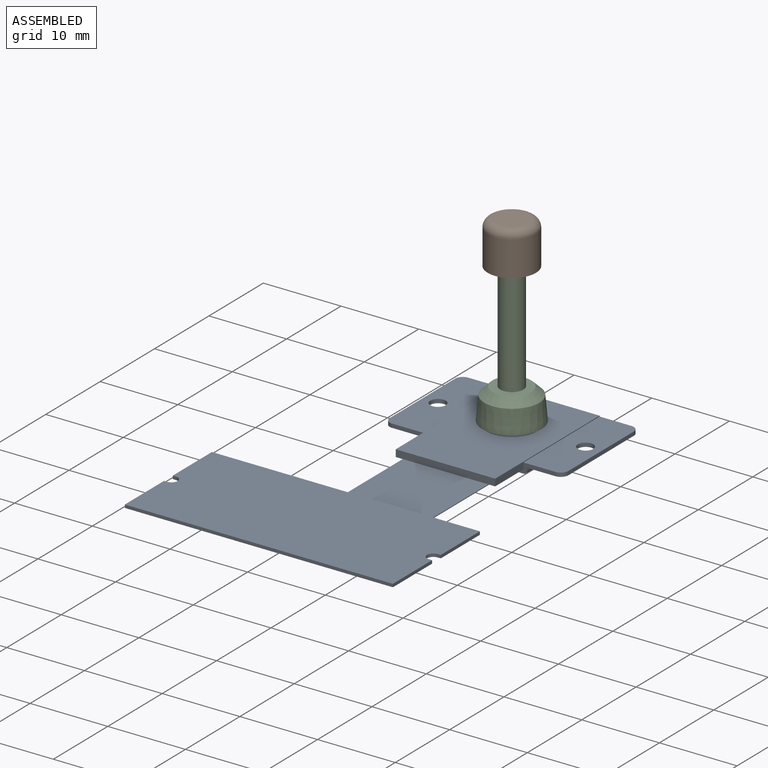
[diagram: assembled view]
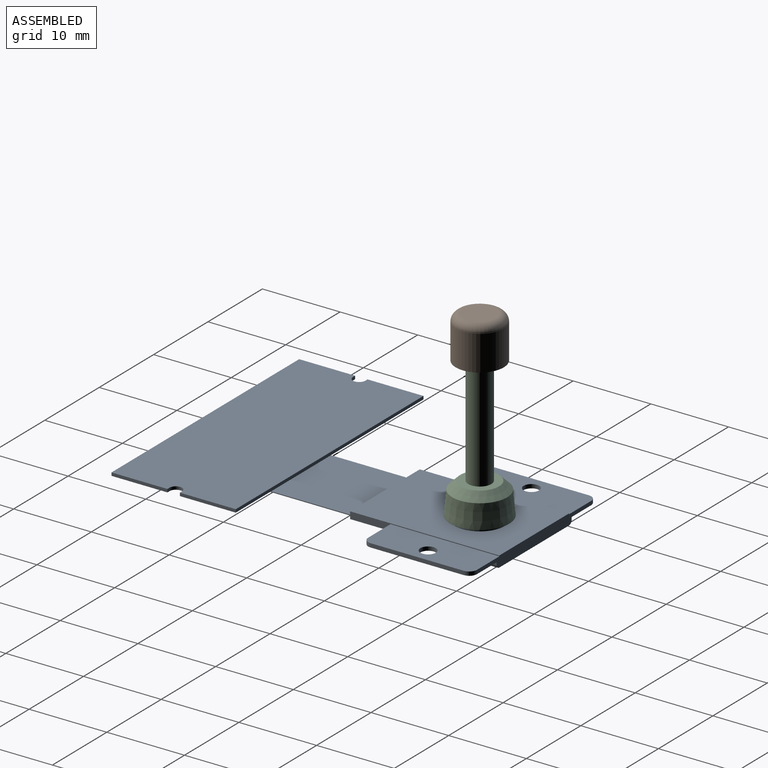
[diagram: assembled view, second angle]
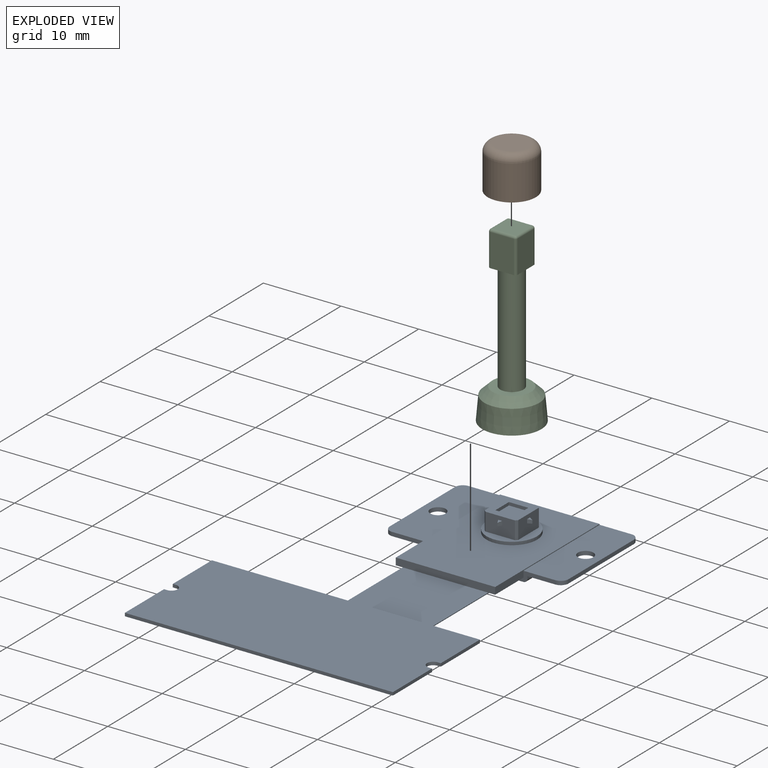
[diagram: exploded view]
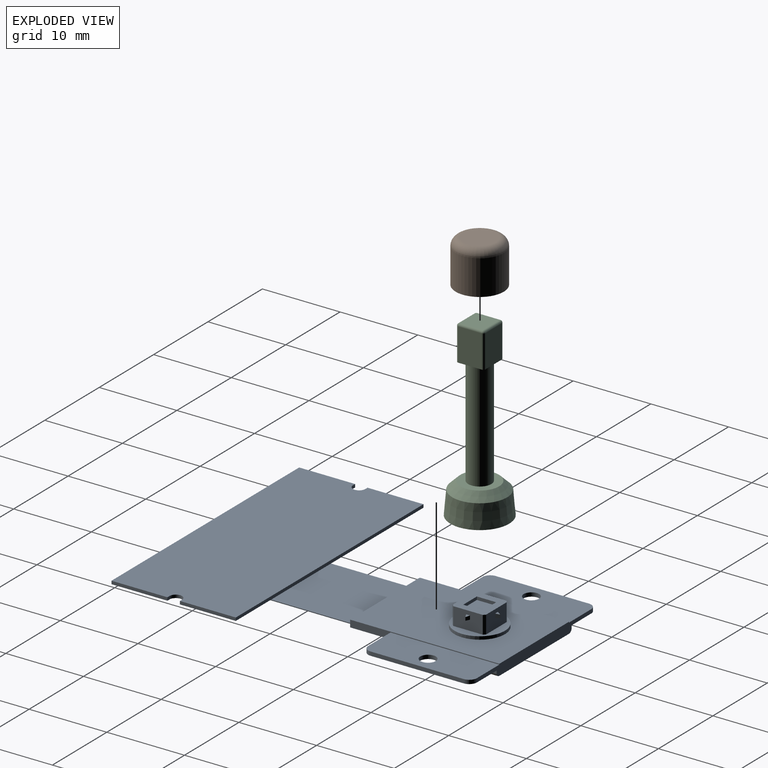
[diagram: exploded view, second angle]
ASSEMBLY  parts=3 mates=2
PART A: 76 faces, bbox 34.5x46x4.1 mm
  f0: plane 5.2x0.9mm, normal (0,0,-1), area 4.7mm2, adj f11,f24,f26,f72
  f1: plane 4.3x4.3mm, normal (0,0,1), area 12.1mm2, adj f2,f3,f30,f31,f32,f33,f34,f35
  f2: plane 3.8x2.3mm, normal (1,0,0), area 8.5mm2, adj f1,f4,f32,f34,f44,f45,f46,f47
  f3: plane 3.8x2.3mm, normal (0,-1,0), area 8.5mm2, adj f1,f4,f34,f35,f40,f41,f42,f43
  f4: plane 6.5x6.5mm, normal (0,0,1), area 14.8mm2, adj f2,f3,f29,f30,f31,f32,f33,f34
  f5: plane 14x12.8mm, normal (0,0,-1), area 179.2mm2, adj f6,f11,f12,f16
  f6: cylinder r=0.5mm len=14mm, axis (0,1,0), area 11mm2, adj f5,f7,f11,f12
  f7: plane 14x0.3mm, normal (1,0,0), area 4.2mm2, adj f6,f8,f11,f12
  f8: plane 14x4.6mm, normal (0,0,-1), area 60.8mm2, adj f7,f9,f11,f12,f13,f14,f15
  f9: plane 12x0.5mm, normal (1,0,0), area 6mm2, adj f8,f10,f14,f15
  f10: plane 14x5.1mm, normal (0,0,1), area 67.8mm2, adj f9,f11,f12,f13,f14,f15,f25
  f11: plane 21x1.3mm, normal (0,-1,0), area 10.1mm2, adj f0,f5,f6,f7,f8,f10,f15,f16
  f12: plane 21x1.4mm, normal (0,1,0), area 22.7mm2, adj f5,f6,f7,f8,f10,f14,f16,f17
  f13: cylinder r=1mm len=2mm, axis (0,0,1), area 3.1mm2, adj f8,f10
  f14: cylinder r=1mm len=1mm, axis (0,0,1), area 0.8mm2, adj f8,f9,f10,f12
  f15: cylinder r=1mm len=1mm, axis (0,0,-1), area 0.8mm2, adj f8,f9,f10,f11
  f16: cylinder r=0.5mm len=14mm, axis (0,1,0), area 11mm2, adj f5,f11,f12,f17
  f17: plane 14x0.3mm, normal (-1,0,0), area 4.2mm2, adj f11,f12,f16,f18
  f18: plane 14x4.6mm, normal (0,0,-1), area 60.8mm2, adj f11,f12,f17,f19,f21,f22,f23
  f19: plane 12x0.5mm, normal (-1,0,0), area 6mm2, adj f18,f20,f22,f23
  f20: plane 14x5.1mm, normal (0,0,1), area 67.8mm2, adj f11,f12,f19,f21,f22,f23,f24
  f21: cylinder r=1mm len=2mm, axis (0,0,1), area 3.1mm2, adj f18,f20
  f22: cylinder r=1mm len=1mm, axis (0,0,1), area 0.8mm2, adj f12,f18,f19,f20
  f23: cylinder r=1mm len=1mm, axis (0,0,-1), area 0.8mm2, adj f11,f18,f19,f20
  f24: plane 19.2x0.9mm, normal (-1,0,0), area 6.1mm2, adj f0,f11,f12,f20,f26,f27
  f25: plane 19.2x0.9mm, normal (1,0,0), area 6.1mm2, adj f10,f11,f12,f26,f27,f28
  f26: plane 12.8x0.9mm, normal (0,-1,0), area 11.5mm2, adj f0,f24,f25,f27,f28,f75
  f27: plane 19.2x12.8mm, normal (0,0,1), area 212.6mm2, adj f12,f24,f25,f26,f29
  f28: plane 5.2x0.9mm, normal (0,0,-1), area 4.7mm2, adj f11,f25,f26,f73
  f29: cylinder r=3.25mm len=6.5mm, axis (0,0,-1), area 8.2mm2, adj f4,f27
  f30: plane 3.8x2.3mm, normal (0,1,0), area 8.5mm2, adj f1,f4,f32,f33,f48,f49,f50,f51
  f31: plane 3.8x2.3mm, normal (-1,0,0), area 8.5mm2, adj f1,f4,f33,f35,f36,f37,f38,f39
  f32: plane 2.3x0.25mm, normal (0.71,0.71,0), area 0.8mm2, adj f1,f2,f4,f30
  f33: plane 2.3x0.25mm, normal (-0.71,0.71,0), area 0.8mm2, adj f1,f4,f30,f31
  f34: plane 2.3x0.25mm, normal (0.71,-0.71,0), area 0.8mm2, adj f1,f2,f3,f4
  f35: plane 2.3x0.25mm, normal (-0.71,-0.71,0), area 0.8mm2, adj f1,f3,f4,f31
  f36: plane 0.5x0.5mm, normal (-0.45,-0.89,0), area 0.3mm2, adj f31,f37,f38,f39
  f37: plane 0.5x0.5mm, normal (-0.45,0.89,0), area 0.3mm2, adj f31,f36,f38,f39
  f38: plane 0.5x0.5mm, normal (0,0,-1), area 0.1mm2, adj f31,f36,f37
  f39: plane 0.5x0.5mm, normal (-0.17,0,0.98), area 0.1mm2, adj f31,f36,f37
  f40: plane 0.5x0.5mm, normal (0.89,-0.45,0), area 0.3mm2, adj f3,f41,f42,f43
  f41: plane 0.5x0.5mm, normal (-0.89,-0.45,0), area 0.3mm2, adj f3,f40,f42,f43
  f42: plane 0.5x0.5mm, normal (0,0,-1), area 0.1mm2, adj f3,f40,f41
  f43: plane 0.5x0.5mm, normal (0,-0.17,0.98), area 0.1mm2, adj f3,f40,f41
  f44: plane 0.5x0.5mm, normal (0.45,0.89,0), area 0.3mm2, adj f2,f45,f46,f47
  f45: plane 0.5x0.5mm, normal (0.45,-0.89,0), area 0.3mm2, adj f2,f44,f46,f47
  f46: plane 0.5x0.5mm, normal (0,0,-1), area 0.1mm2, adj f2,f44,f45
  f47: plane 0.5x0.5mm, normal (0.17,0,0.98), area 0.1mm2, adj f2,f44,f45
  f48: plane 0.5x0.5mm, normal (-0.89,0.45,0), area 0.3mm2, adj f30,f49,f50,f51
  f49: plane 0.5x0.5mm, normal (0.89,0.45,0), area 0.3mm2, adj f30,f48,f50,f51
  f50: plane 0.5x0.5mm, normal (0,0,-1), area 0.1mm2, adj f30,f48,f49
  f51: plane 0.5x0.5mm, normal (0,0.17,0.98), area 0.1mm2, adj f30,f48,f49
  f52: plane 2.5x0.4mm, normal (0,1,0), area 1mm2, adj f1,f53,f55,f56
  f53: plane 2.5x0.4mm, normal (-1,0,0), area 1mm2, adj f1,f52,f54,f56
  f54: plane 2.5x0.4mm, normal (0,-1,0), area 1mm2, adj f1,f53,f55,f56
  f55: plane 2.5x0.4mm, normal (1,0,0), area 1mm2, adj f1,f52,f54,f56
  f56: plane 2.5x2.5mm, normal (0,0,1), area 6.2mm2, adj f52,f53,f54,f55
  f57: plane 7.2x0.4mm, normal (1,0,0), area 2.9mm2, adj f59,f60,f64,f70
  f58: plane 7.2x0.4mm, normal (-1,0,0), area 2.9mm2, adj f59,f60,f64,f65
  f59: plane 34.5x16mm, normal (0,0,1), area 548.7mm2, adj f57,f58,f60,f61,f62,f63,f65,f66
  f60: plane 34.5x0.4mm, normal (0,-1,0), area 13.8mm2, adj f57,f58,f59,f64
  f61: plane 7.2x0.4mm, normal (1,0,0), area 2.9mm2, adj f59,f62,f64,f68
  f62: plane 34.5x0.4mm, normal (0,1,0), area 13.8mm2, adj f59,f61,f63,f64,f75
  f63: plane 7.2x0.4mm, normal (-1,0,0), area 2.9mm2, adj f59,f62,f64,f67
  f64: plane 34.5x16mm, normal (0,0,-1), area 500.8mm2, adj f57,f58,f60,f61,f62,f63,f65,f66
  f65: plane 0.4x0.4mm, normal (0,1,0), area 0.2mm2, adj f58,f59,f64,f66
  f66: cylinder r=0.8mm len=1.6mm, axis (0,0,1), area 1mm2, adj f59,f64,f65,f67
  f67: plane 0.4x0.4mm, normal (0,-1,0), area 0.2mm2, adj f59,f63,f64,f66
  f68: plane 0.4x0.4mm, normal (0,-1,0), area 0.2mm2, adj f59,f61,f64,f69
  f69: cylinder r=0.8mm len=1.6mm, axis (0,0,1), area 1mm2, adj f59,f64,f68,f70
  f70: plane 0.4x0.4mm, normal (0,1,0), area 0.2mm2, adj f57,f59,f64,f69
  f71: plane 11x0.1mm, normal (0,-1,0), area 1.1mm2, adj f64,f72,f73,f74
  f72: plane 20.36x0.1mm, normal (-1,0,0), area 2mm2, adj f0,f11,f64,f71,f74,f75
  f73: plane 20.36x0.1mm, normal (1,0,0), area 2mm2, adj f11,f28,f64,f71,f74,f75
  f74: plane 20.36x11mm, normal (0,0,-1), area 223.9mm2, adj f11,f71,f72,f73
  f75: plane 11x10.8mm, normal (0,0,1), area 118.8mm2, adj f26,f62,f72,f73
PART B: 9 faces, bbox 6.7x6.7x5.5 mm
  f0: plane 6.2x6.2mm, normal (0,0,-1), area 17.6mm2, adj f1,f5,f6,f7,f8
  f1: cylinder r=3.1mm len=6.2mm, axis (0,0,-1), area 87.7mm2, adj f0,f2
  f2: torus R=2.1mm, axis (0,0,-1), area 27mm2, adj f1,f3
  f3: plane 4.2x4.2mm, normal (0,0,1), area 13.9mm2, adj f2
  f4: plane 3.55x3.55mm, normal (0,0,-1), area 12.6mm2, adj f5,f6,f7,f8
  f5: plane 4.5x3.55mm, normal (-1,0,0), area 16mm2, adj f0,f4,f6,f7
  f6: plane 4.5x3.55mm, normal (0,-1,0), area 16mm2, adj f0,f4,f5,f8
  f7: plane 4.5x3.55mm, normal (0,1,0), area 16mm2, adj f0,f4,f5,f8
  f8: plane 4.5x3.55mm, normal (1,0,0), area 16mm2, adj f0,f4,f6,f7
PART C: 28 faces, bbox 7.6x7.6x22.5 mm
  f0: cylinder r=1.5mm len=14mm, axis (0,0,-1), area 131.9mm2, adj f4,f14
  f1: plane 7.6x7.6mm, normal (0,0,-1), area 26.9mm2, adj f2,f5,f6,f7,f8
  f2: cone r=3.54mm half-angle=5deg, axis (0,0,-1), area 69.4mm2, adj f1,f3
  f3: cone r=2.5mm half-angle=46.1deg, axis (0,0,-1), area 27.3mm2, adj f2,f4
  f4: plane 5x5mm, normal (0,0,1), area 12.6mm2, adj f0,f3
  f5: plane 4.3x2.4mm, normal (0,1,0), area 10.3mm2, adj f1,f6,f8,f9
  f6: plane 4.3x2.4mm, normal (-1,0,0), area 10.3mm2, adj f1,f5,f7,f9
  f7: plane 4.3x2.4mm, normal (0,-1,0), area 10.3mm2, adj f1,f6,f8,f9
  f8: plane 4.3x2.4mm, normal (1,0,0), area 10.3mm2, adj f1,f5,f7,f9
  f9: plane 4.3x4.3mm, normal (0,0,-1), area 18.5mm2, adj f5,f6,f7,f8
  f10: plane 4.2x3mm, normal (1,0,0), area 12.6mm2, adj f14,f18,f24,f27
  f11: plane 4.2x3mm, normal (0,1,0), area 12.6mm2, adj f14,f21,f25,f27
  f12: plane 4.2x3mm, normal (-1,0,0), area 12.6mm2, adj f14,f16,f20,f21
  f13: plane 4.2x3mm, normal (0,-1,0), area 12.6mm2, adj f14,f16,f18,f19
  f14: plane 3.6x3.6mm, normal (0,0,-1), area 5.8mm2, adj f0,f10,f11,f12,f13,f16,f18,f21
  f15: plane 3x3mm, normal (0,0,1), area 9mm2, adj f19,f20,f24,f25
  f16: cylinder r=0.3mm len=4.2mm, axis (0,0,1), area 2mm2, adj f12,f13,f14,f17
  f17: sphere r=0.3mm, area 0.1mm2, adj f16,f19,f20
  f18: cylinder r=0.3mm len=4.2mm, axis (0,0,-1), area 2mm2, adj f10,f13,f14,f22
  f19: cylinder r=0.3mm len=3mm, axis (1,0,0), area 1.4mm2, adj f13,f15,f17,f22
  f20: cylinder r=0.3mm len=3mm, axis (0,-1,0), area 1.4mm2, adj f12,f15,f17,f23
  f21: cylinder r=0.3mm len=4.2mm, axis (0,0,-1), area 2mm2, adj f11,f12,f14,f23
  f22: sphere r=0.3mm, area 0.1mm2, adj f18,f19,f24
  f23: sphere r=0.3mm, area 0.1mm2, adj f20,f21,f25
  f24: cylinder r=0.3mm len=3mm, axis (0,1,0), area 1.4mm2, adj f10,f15,f22,f26
  f25: cylinder r=0.3mm len=3mm, axis (-1,0,0), area 1.4mm2, adj f11,f15,f23,f26
  f26: sphere r=0.3mm, area 0.1mm2, adj f24,f25,f27
  f27: cylinder r=0.3mm len=4.2mm, axis (0,0,1), area 2mm2, adj f10,f11,f14,f26
PLACE A at identity fixed
PLACE B t=(0,0,18.5)mm
PLACE C at identity
MATE fastened C.f0 <-> B.f1  axis (0,0,1) through (0,0,23)mm
MATE fastened A.f29 <-> C.f0  axis (0,0,1) through (0,0,2.8)mm
